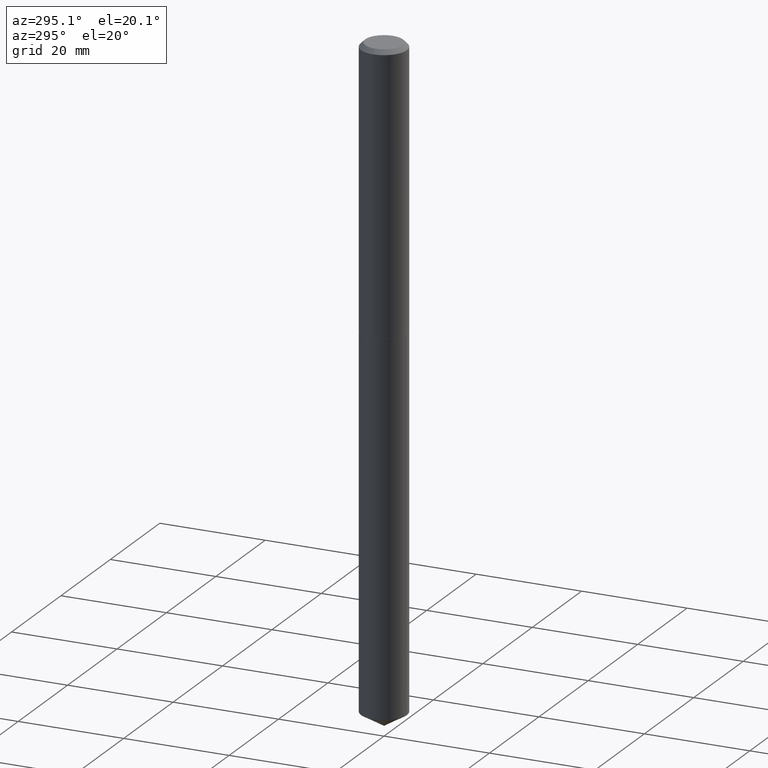
[diagram: clean part render]
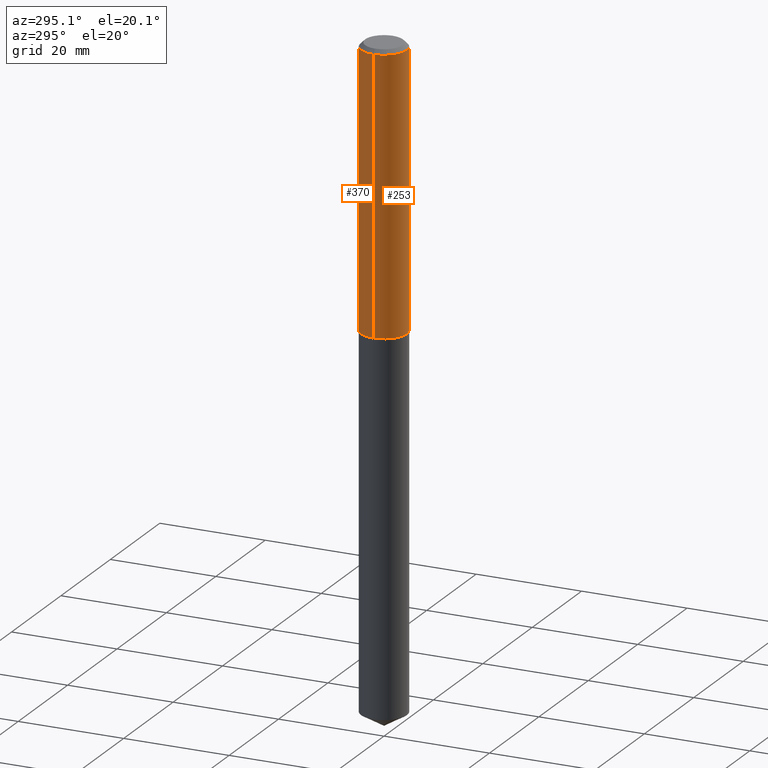
[diagram: same view with one multi-face feature highlighted, each face labeled with its STEP entity id]
A machine part, auxiliary view. The highlighted faces form ONE feature: a constant-radius fillet chain: 2 tangent blend faces with common blend radius 4.3498 mm. The faces share edges in the B-rep.
Their STEP definitions:
[1] entity #253 (Cylinder):
#4 = DIRECTION ( 'NONE',  ( 1.000000000000000000, -6.982962677686267499E-15, 4.876176775795935793E-29 ) ) ;
#15 = DIRECTION ( 'NONE',  ( -2.445468806185136877E-29, 3.491481338843145188E-15, 1.000000000000000000 ) ) ;
#36 = AXIS2_PLACEMENT_3D ( 'NONE', #70, #42, #102 ) ;
#42 = DIRECTION ( 'NONE',  ( -2.445468806185136597E-29, 3.491481338843145583E-15, 1.000000000000000000 ) ) ;
#46 = CARTESIAN_POINT ( 'NONE',  ( 0.1712500000000000133, -1.304941150392622433E-15, -0.03125000000000019429 ) ) ;
#49 = EDGE_LOOP ( 'NONE', ( #376, #111, #148, #282 ) ) ;
#60 = DIRECTION ( 'NONE',  ( -2.445468806185136597E-29, 3.491481338843145583E-15, 1.000000000000000000 ) ) ;
#70 = CARTESIAN_POINT ( 'NONE',  ( 7.642090019328598283E-31, -1.091087918388489651E-16, -0.03125000000000019429 ) ) ;
#72 = EDGE_CURVE ( 'NONE', #201, #381, #113, .T. ) ;
#73 = CARTESIAN_POINT ( 'NONE',  ( 0.1712500000000002354, -8.434720618377267964E-15, -2.073299999999999699 ) ) ;
#89 = AXIS2_PLACEMENT_3D ( 'NONE', #308, #158, #4 ) ;
#102 = DIRECTION ( 'NONE',  ( 1.000000000000000000, -6.982962677686266711E-15, 0.000000000000000000 ) ) ;
#104 = EDGE_CURVE ( 'NONE', #381, #363, #233, .T. ) ;
#108 = VERTEX_POINT ( 'NONE', #334 ) ;
#111 = ORIENTED_EDGE ( 'NONE', *, *, #72, .T. ) ;
#113 = CIRCLE ( 'NONE', #161, 0.1712500000000002354 ) ;
#119 = VECTOR ( 'NONE', #176, 39.37007874015748143 ) ;
#123 = DIRECTION ( 'NONE',  ( 1.000000000000000000, -6.982962677686265133E-15, 0.000000000000000000 ) ) ;
#125 = CYLINDRICAL_SURFACE ( 'NONE', #89, 0.1712500000000001243 ) ;
#148 = ORIENTED_EDGE ( 'NONE', *, *, #104, .T. ) ;
#158 = DIRECTION ( 'NONE',  ( -2.445468806185136597E-29, 3.491481338843145583E-15, 1.000000000000000000 ) ) ;
#161 = AXIS2_PLACEMENT_3D ( 'NONE', #327, #60, #123 ) ;
#176 = DIRECTION ( 'NONE',  ( -2.445468806185136877E-29, 3.491481338843145188E-15, 1.000000000000000000 ) ) ;
#186 = FACE_OUTER_BOUND ( 'NONE', #49, .T. ) ;
#187 = CARTESIAN_POINT ( 'NONE',  ( -0.1712500000000002354, -6.022083824834319025E-15, -2.073299999999999699 ) ) ;
#201 = VERTEX_POINT ( 'NONE', #187 ) ;
#217 = EDGE_CURVE ( 'NONE', #108, #363, #373, .T. ) ;
#233 = LINE ( 'NONE', #358, #119 ) ;
#253 = ADVANCED_FACE ( 'NONE', ( #186 ), #125, .T. ) ;
#254 = LINE ( 'NONE', #291, #387 ) ;
#282 = ORIENTED_EDGE ( 'NONE', *, *, #217, .F. ) ;
#291 = CARTESIAN_POINT ( 'NONE',  ( -0.1712500000000001243, 1.216804434989172452E-15, -8.423676342061532268E-30 ) ) ;
#308 = CARTESIAN_POINT ( 'NONE',  ( 0.000000000000000000, 0.000000000000000000, 0.000000000000000000 ) ) ;
#327 = CARTESIAN_POINT ( 'NONE',  ( 5.070190475863642689E-29, -7.238888259823493055E-15, -2.073299999999999699 ) ) ;
#334 = CARTESIAN_POINT ( 'NONE',  ( -0.1712500000000000133, -2.457194090841997837E-15, -0.03125000000000019429 ) ) ;
#358 = CARTESIAN_POINT ( 'NONE',  ( 0.1712500000000001243, -1.195832358553774121E-15, 8.350452728550546071E-30 ) ) ;
#363 = VERTEX_POINT ( 'NONE', #46 ) ;
#373 = CIRCLE ( 'NONE', #36, 0.1712500000000000133 ) ;
#376 = ORIENTED_EDGE ( 'NONE', *, *, #378, .F. ) ;
#378 = EDGE_CURVE ( 'NONE', #201, #108, #254, .T. ) ;
#381 = VERTEX_POINT ( 'NONE', #73 ) ;
#387 = VECTOR ( 'NONE', #15, 39.37007874015748143 ) ;
[2] entity #370 (Cylinder):
#1 = DIRECTION ( 'NONE',  ( -2.445468806185136597E-29, 3.491481338843145583E-15, 1.000000000000000000 ) ) ;
#11 = ORIENTED_EDGE ( 'NONE', *, *, #61, .T. ) ;
#14 = AXIS2_PLACEMENT_3D ( 'NONE', #139, #203, #78 ) ;
#15 = DIRECTION ( 'NONE',  ( -2.445468806185136877E-29, 3.491481338843145188E-15, 1.000000000000000000 ) ) ;
#39 = DIRECTION ( 'NONE',  ( 1.000000000000000000, -6.982962677686266711E-15, 0.000000000000000000 ) ) ;
#46 = CARTESIAN_POINT ( 'NONE',  ( 0.1712500000000000133, -1.304941150392622433E-15, -0.03125000000000019429 ) ) ;
#61 = EDGE_CURVE ( 'NONE', #381, #201, #67, .T. ) ;
#67 = CIRCLE ( 'NONE', #385, 0.1712500000000002354 ) ;
#73 = CARTESIAN_POINT ( 'NONE',  ( 0.1712500000000002354, -8.434720618377267964E-15, -2.073299999999999699 ) ) ;
#78 = DIRECTION ( 'NONE',  ( 1.000000000000000000, -6.982962677686267499E-15, 4.876176775795935793E-29 ) ) ;
#101 = CIRCLE ( 'NONE', #377, 0.1712500000000000133 ) ;
#104 = EDGE_CURVE ( 'NONE', #381, #363, #233, .T. ) ;
#108 = VERTEX_POINT ( 'NONE', #334 ) ;
#119 = VECTOR ( 'NONE', #176, 39.37007874015748143 ) ;
#132 = CYLINDRICAL_SURFACE ( 'NONE', #14, 0.1712500000000001243 ) ;
#138 = ORIENTED_EDGE ( 'NONE', *, *, #104, .F. ) ;
#139 = CARTESIAN_POINT ( 'NONE',  ( 0.000000000000000000, 0.000000000000000000, 0.000000000000000000 ) ) ;
#176 = DIRECTION ( 'NONE',  ( -2.445468806185136877E-29, 3.491481338843145188E-15, 1.000000000000000000 ) ) ;
#185 = EDGE_CURVE ( 'NONE', #363, #108, #101, .T. ) ;
#187 = CARTESIAN_POINT ( 'NONE',  ( -0.1712500000000002354, -6.022083824834319025E-15, -2.073299999999999699 ) ) ;
#201 = VERTEX_POINT ( 'NONE', #187 ) ;
#203 = DIRECTION ( 'NONE',  ( -2.445468806185136597E-29, 3.491481338843145583E-15, 1.000000000000000000 ) ) ;
#221 = DIRECTION ( 'NONE',  ( -2.445468806185136597E-29, 3.491481338843145583E-15, 1.000000000000000000 ) ) ;
#232 = EDGE_LOOP ( 'NONE', ( #11, #322, #323, #138 ) ) ;
#233 = LINE ( 'NONE', #358, #119 ) ;
#239 = CARTESIAN_POINT ( 'NONE',  ( 7.642090019328598283E-31, -1.091087918388489651E-16, -0.03125000000000019429 ) ) ;
#254 = LINE ( 'NONE', #291, #387 ) ;
#291 = CARTESIAN_POINT ( 'NONE',  ( -0.1712500000000001243, 1.216804434989172452E-15, -8.423676342061532268E-30 ) ) ;
#322 = ORIENTED_EDGE ( 'NONE', *, *, #378, .T. ) ;
#323 = ORIENTED_EDGE ( 'NONE', *, *, #185, .F. ) ;
#329 = CARTESIAN_POINT ( 'NONE',  ( 5.070190475863642689E-29, -7.238888259823493055E-15, -2.073299999999999699 ) ) ;
#334 = CARTESIAN_POINT ( 'NONE',  ( -0.1712500000000000133, -2.457194090841997837E-15, -0.03125000000000019429 ) ) ;
#346 = FACE_OUTER_BOUND ( 'NONE', #232, .T. ) ;
#358 = CARTESIAN_POINT ( 'NONE',  ( 0.1712500000000001243, -1.195832358553774121E-15, 8.350452728550546071E-30 ) ) ;
#363 = VERTEX_POINT ( 'NONE', #46 ) ;
#370 = ADVANCED_FACE ( 'NONE', ( #346 ), #132, .T. ) ;
#377 = AXIS2_PLACEMENT_3D ( 'NONE', #239, #221, #39 ) ;
#378 = EDGE_CURVE ( 'NONE', #201, #108, #254, .T. ) ;
#381 = VERTEX_POINT ( 'NONE', #73 ) ;
#384 = DIRECTION ( 'NONE',  ( 1.000000000000000000, -6.982962677686265133E-15, 0.000000000000000000 ) ) ;
#385 = AXIS2_PLACEMENT_3D ( 'NONE', #329, #1, #384 ) ;
#387 = VECTOR ( 'NONE', #15, 39.37007874015748143 ) ;